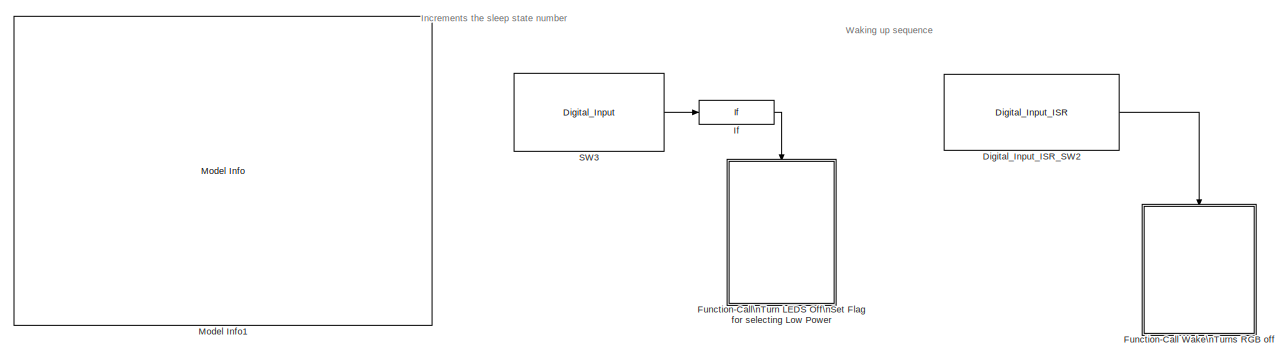
[diagram: root canvas - part 1/2, full width, top band]
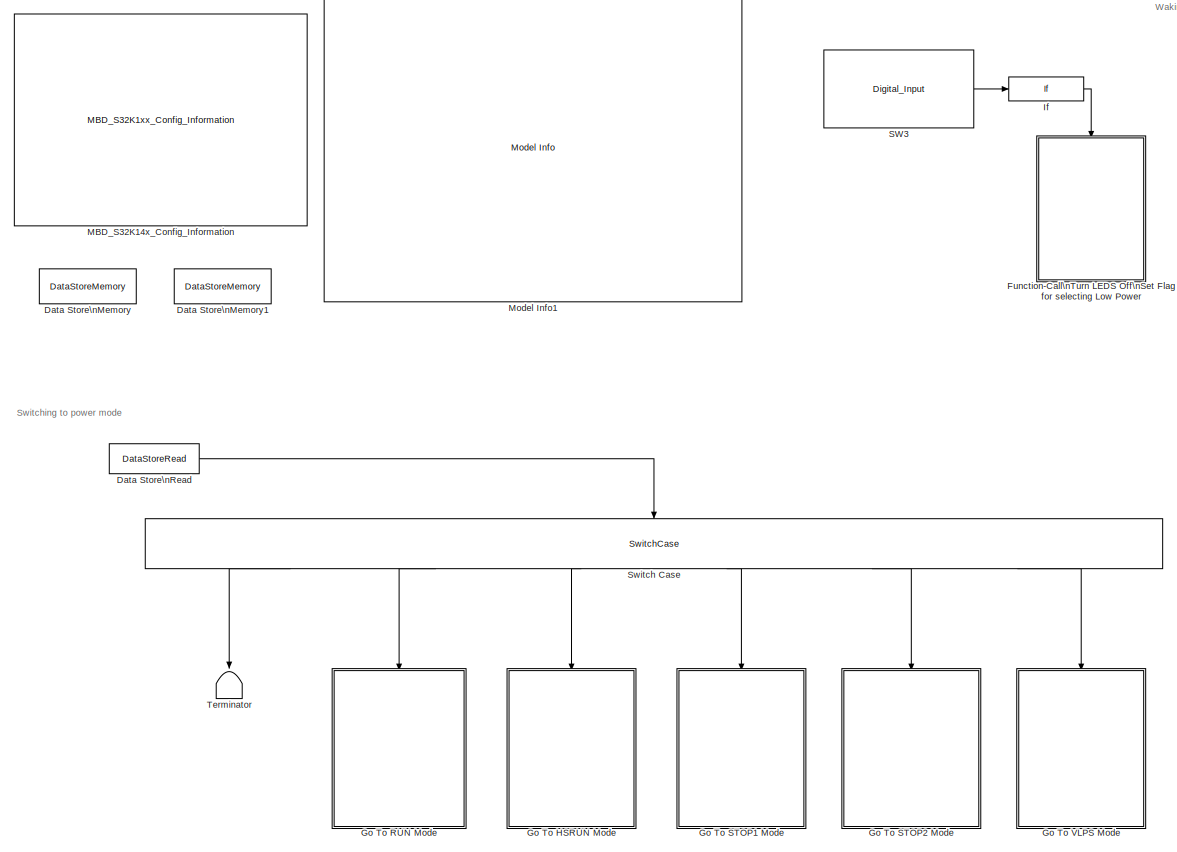
[diagram: root canvas - part 2/2, most of the canvas]
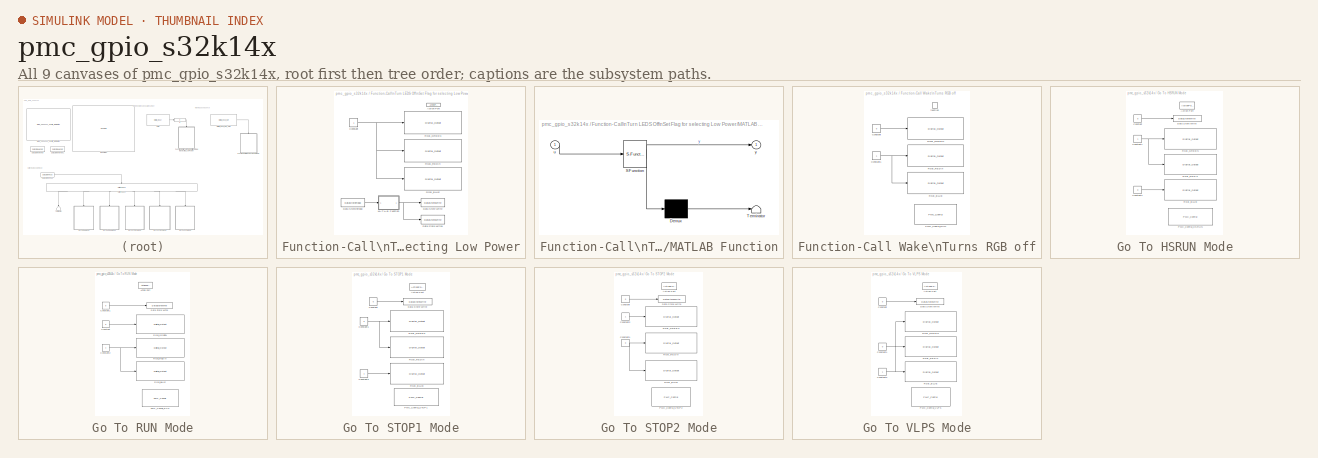
[diagram: thumbnail index - all 9 canvases of the model, root first then tree order]
MODEL pmc_gpio_s32k14x
KIND model
CONFIG InitFcn = mbd_s32k_consistency_checks(bdroot(gcs));
BLOCK [DataStoreMemory] Data Store\nMemory
  DataStoreName = sleep_state
  InitialValue = 1
  OutDataTypeStr = uint8
  ReadBeforeWriteMsg = warning
  SID = 7
  ShowAdditionalParam = off
  WriteAfterReadMsg = warning
  WriteAfterWriteMsg = warning
BLOCK [DataStoreMemory] Data Store\nMemory1
  DataStoreName = sleep_status_fsm
  InitialValue = 1
  OutDataTypeStr = uint8
  ReadBeforeWriteMsg = warning
  SID = 376
  ShowAdditionalParam = off
  WriteAfterReadMsg = warning
  WriteAfterWriteMsg = warning
BLOCK [DataStoreRead] Data Store\nRead
  DataStoreName = sleep_status_fsm
  Ports = [0, 1]
  SID = 399
BLOCK [Reference] Digital_Input_ISR_SW2  REF=mbd_s32k1xx_ec_toolbox/GPIO Blocks/Digital_Input_ISR
  Ports = [0, 1]
  SID = 9
  SourceBlock = mbd_s32k1xx_ec_toolbox/GPIO Blocks/Digital_Input_ISR
  SourceType = gpi_s32k_isr
  gpio_pin = PTC12: [PTC12 | Port C I/O]
  irqc = on rising-edge
  prio = 0
BLOCK [SubSystem] Function-Call Wake\nTurns RGB off
  Ports = [0, 0, 0, 1]
  RequestExecContextInheritance = off
  SID = 19
  TreatAsAtomicUnit = on
  Variant = off
BLOCK [Constant] Function-Call Wake\nTurns RGB off/Constant
  OutDataTypeStr = boolean
  SID = 21
  Value = 0
BLOCK [Constant] Function-Call Wake\nTurns RGB off/Constant1
  OutDataTypeStr = boolean
  SID = 22
BLOCK [Reference] Function-Call Wake\nTurns RGB off/PMC_Config_RUN  REF=mbd_s32k1xx_ec_toolbox/Core and System Blocks/PMC Blocks/PMC_Config
  Ports = []
  SID = 548
  SourceBlock = mbd_s32k1xx_ec_toolbox/Core and System Blocks/PMC Blocks/PMC_Config
  SourceType = pmc_s32k_config
  callback_after = off
  callback_before = off
  callback_before_after = off
  power_mode = Normal Operating (RUN)
  show_adv_opts = off
  sleep_on_exit = off
BLOCK [Reference] Function-Call Wake\nTurns RGB off/RGB_BLUE  REF=mbd_s32k1xx_ec_toolbox/GPIO Blocks/Digital_Output
  Ports = [1]
  SID = 501
  SourceBlock = mbd_s32k1xx_ec_toolbox/GPIO Blocks/Digital_Output
  SourceType = gpio_s32k_output
  drive_strength = Low
  gpio_pin = PTD0: [PTD0 | Port D I/O]
  init_val = Low
BLOCK [Reference] Function-Call Wake\nTurns RGB off/RGB_GREEN  REF=mbd_s32k1xx_ec_toolbox/GPIO Blocks/Digital_Output
  Ports = [1]
  SID = 23
  SourceBlock = mbd_s32k1xx_ec_toolbox/GPIO Blocks/Digital_Output
  SourceType = gpio_s32k_output
  drive_strength = Low
  gpio_pin = PTD16: [PTD16 | Port D I/O]
  init_val = Low
BLOCK [Reference] Function-Call Wake\nTurns RGB off/RGB_RED\n  REF=mbd_s32k1xx_ec_toolbox/GPIO Blocks/Digital_Output
  Ports = [1]
  SID = 24
  SourceBlock = mbd_s32k1xx_ec_toolbox/GPIO Blocks/Digital_Output
  SourceType = gpio_s32k_output
  drive_strength = Low
  gpio_pin = PTD15: [PTD15 | Port D I/O]
  init_val = Low
BLOCK [TriggerPort] Function-Call Wake\nTurns RGB off/function
  Ports = []
  SID = 20
  StatesWhenEnabling = held
  TriggerType = function-call
  VariantControl = Variant
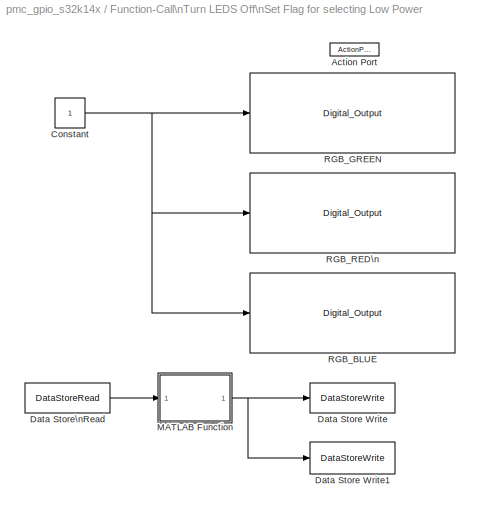
BLOCK [SubSystem] Function-Call\nTurn LEDS Off\nSet Flag for selecting Low Power
  Ports = [0, 0, 0, 0, 0, 0, 0, 1]
  RequestExecContextInheritance = off
  SID = 11
  TreatAsAtomicUnit = on
  Variant = off
BLOCK [ActionPort] Function-Call\nTurn LEDS Off\nSet Flag for selecting Low Power/Action Port
  SID = 545
BLOCK [Constant] Function-Call\nTurn LEDS Off\nSet Flag for selecting Low Power/Constant
  OutDataTypeStr = boolean
  SID = 13
BLOCK [DataStoreWrite] Function-Call\nTurn LEDS Off\nSet Flag for selecting Low Power/Data Store Write
  DataStoreName = sleep_state
  Ports = [1]
  SID = 16
BLOCK [DataStoreWrite] Function-Call\nTurn LEDS Off\nSet Flag for selecting Low Power/Data Store Write1
  DataStoreName = sleep_status_fsm
  Ports = [1]
  SID = 380
BLOCK [DataStoreRead] Function-Call\nTurn LEDS Off\nSet Flag for selecting Low Power/Data Store\nRead
  DataStoreName = sleep_state
  Ports = [0, 1]
  SID = 375
BLOCK [SubSystem] Function-Call\nTurn LEDS Off\nSet Flag for selecting Low Power/MATLAB Function
  ErrorFcn = Stateflow.Translate.translate
  PermitHierarchicalResolution = ExplicitOnly
  Ports = [1, 1]
  RequestExecContextInheritance = off
  SFBlockType = MATLAB Function
  SID = 374
  TreatAsAtomicUnit = on
  Variant = off
BLOCK [Demux] Function-Call\nTurn LEDS Off\nSet Flag for selecting Low Power/MATLAB Function/ Demux 
  Outputs = 1
  Ports = [1, 1]
  SID = 374::32
BLOCK [S-Function] Function-Call\nTurn LEDS Off\nSet Flag for selecting Low Power/MATLAB Function/ SFunction 
  EnableBusSupport = off
  FunctionName = sf_sfun
  PortCounts = [1 2]
  Ports = [1, 2]
  SFcnIsStateOwnerBlock = off
  SFunctionDeploymentMode = off
  SID = 374::31
  Tag = Stateflow S-Function pmc_gpio_s32k14x 2
BLOCK [Terminator] Function-Call\nTurn LEDS Off\nSet Flag for selecting Low Power/MATLAB Function/ Terminator 
  SID = 374::33
BLOCK [Inport] Function-Call\nTurn LEDS Off\nSet Flag for selecting Low Power/MATLAB Function/u
  IconDisplay = Port number
  SID = 374::1
BLOCK [Outport] Function-Call\nTurn LEDS Off\nSet Flag for selecting Low Power/MATLAB Function/y
  IconDisplay = Port number
  SID = 374::5
BLOCK [Reference] Function-Call\nTurn LEDS Off\nSet Flag for selecting Low Power/RGB_BLUE  REF=mbd_s32k1xx_ec_toolbox/GPIO Blocks/Digital_Output
  Ports = [1]
  SID = 499
  SourceBlock = mbd_s32k1xx_ec_toolbox/GPIO Blocks/Digital_Output
  SourceType = gpio_s32k_output
  drive_strength = Low
  gpio_pin = PTD0: [PTD0 | Port D I/O]
  init_val = Low
BLOCK [Reference] Function-Call\nTurn LEDS Off\nSet Flag for selecting Low Power/RGB_GREEN  REF=mbd_s32k1xx_ec_toolbox/GPIO Blocks/Digital_Output
  Ports = [1]
  SID = 17
  SourceBlock = mbd_s32k1xx_ec_toolbox/GPIO Blocks/Digital_Output
  SourceType = gpio_s32k_output
  drive_strength = Low
  gpio_pin = PTD16: [PTD16 | Port D I/O]
  init_val = Low
BLOCK [Reference] Function-Call\nTurn LEDS Off\nSet Flag for selecting Low Power/RGB_RED\n  REF=mbd_s32k1xx_ec_toolbox/GPIO Blocks/Digital_Output
  Ports = [1]
  SID = 18
  SourceBlock = mbd_s32k1xx_ec_toolbox/GPIO Blocks/Digital_Output
  SourceType = gpio_s32k_output
  drive_strength = Low
  gpio_pin = PTD15: [PTD15 | Port D I/O]
  init_val = Low
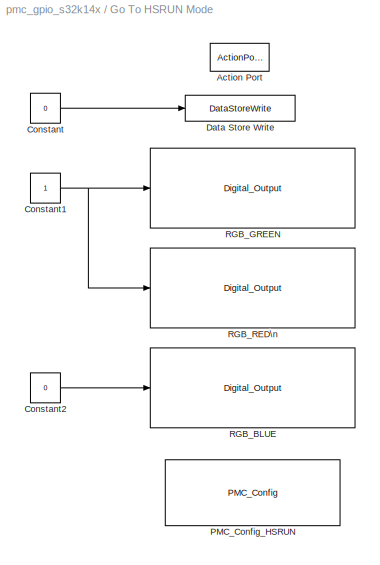
BLOCK [SubSystem] Go To HSRUN Mode
  Ports = [0, 0, 0, 0, 0, 0, 0, 1]
  RequestExecContextInheritance = off
  SID = 400
  TreatAsAtomicUnit = on
  Variant = off
BLOCK [ActionPort] Go To HSRUN Mode/Action Port
  SID = 457
BLOCK [Constant] Go To HSRUN Mode/Constant
  OutDataTypeStr = uint8
  SID = 441
  Value = 0
BLOCK [Constant] Go To HSRUN Mode/Constant1
  OutDataTypeStr = boolean
  SID = 508
BLOCK [Constant] Go To HSRUN Mode/Constant2
  OutDataTypeStr = boolean
  SID = 509
  Value = 0
BLOCK [DataStoreWrite] Go To HSRUN Mode/Data Store Write
  DataStoreName = sleep_status_fsm
  Ports = [1]
  SID = 442
BLOCK [Reference] Go To HSRUN Mode/PMC_Config_HSRUN  REF=mbd_s32k1xx_ec_toolbox/Core and System Blocks/PMC Blocks/PMC_Config
  Ports = []
  SID = 496
  SourceBlock = mbd_s32k1xx_ec_toolbox/Core and System Blocks/PMC Blocks/PMC_Config
  SourceType = pmc_s32k_config
  callback_after = off
  callback_before = off
  callback_before_after = off
  power_mode = High Speed Run (HSRUN)
  show_adv_opts = off
  sleep_on_exit = off
BLOCK [Reference] Go To HSRUN Mode/RGB_BLUE  REF=mbd_s32k1xx_ec_toolbox/GPIO Blocks/Digital_Output
  Ports = [1]
  SID = 510
  SourceBlock = mbd_s32k1xx_ec_toolbox/GPIO Blocks/Digital_Output
  SourceType = gpio_s32k_output
  drive_strength = Low
  gpio_pin = PTD0: [PTD0 | Port D I/O]
  init_val = Low
BLOCK [Reference] Go To HSRUN Mode/RGB_GREEN  REF=mbd_s32k1xx_ec_toolbox/GPIO Blocks/Digital_Output
  Ports = [1]
  SID = 511
  SourceBlock = mbd_s32k1xx_ec_toolbox/GPIO Blocks/Digital_Output
  SourceType = gpio_s32k_output
  drive_strength = Low
  gpio_pin = PTD16: [PTD16 | Port D I/O]
  init_val = Low
BLOCK [Reference] Go To HSRUN Mode/RGB_RED\n  REF=mbd_s32k1xx_ec_toolbox/GPIO Blocks/Digital_Output
  Ports = [1]
  SID = 512
  SourceBlock = mbd_s32k1xx_ec_toolbox/GPIO Blocks/Digital_Output
  SourceType = gpio_s32k_output
  drive_strength = Low
  gpio_pin = PTD15: [PTD15 | Port D I/O]
  init_val = Low
BLOCK [SubSystem] Go To RUN Mode
  Ports = [0, 0, 0, 0, 0, 0, 0, 1]
  RequestExecContextInheritance = off
  SID = 405
  TreatAsAtomicUnit = on
  Variant = off
BLOCK [ActionPort] Go To RUN Mode/Action Port
  SID = 455
BLOCK [Constant] Go To RUN Mode/Constant
  OutDataTypeStr = boolean
  SID = 502
  Value = 0
BLOCK [Constant] Go To RUN Mode/Constant1
  OutDataTypeStr = uint8
  SID = 439
  Value = 0
BLOCK [Constant] Go To RUN Mode/Constant2
  OutDataTypeStr = boolean
  SID = 506
BLOCK [DataStoreWrite] Go To RUN Mode/Data Store Write
  DataStoreName = sleep_status_fsm
  Ports = [1]
  SID = 440
BLOCK [Reference] Go To RUN Mode/PMC_Config_RUN  REF=mbd_s32k1xx_ec_toolbox/Core and System Blocks/PMC Blocks/PMC_Config
  Ports = []
  SID = 488
  SourceBlock = mbd_s32k1xx_ec_toolbox/Core and System Blocks/PMC Blocks/PMC_Config
  SourceType = pmc_s32k_config
  callback_after = off
  callback_before = off
  callback_before_after = off
  power_mode = Normal Operating (RUN)
  show_adv_opts = off
  sleep_on_exit = off
BLOCK [Reference] Go To RUN Mode/RGB_BLUE  REF=mbd_s32k1xx_ec_toolbox/GPIO Blocks/Digital_Output
  Ports = [1]
  SID = 503
  SourceBlock = mbd_s32k1xx_ec_toolbox/GPIO Blocks/Digital_Output
  SourceType = gpio_s32k_output
  drive_strength = Low
  gpio_pin = PTD0: [PTD0 | Port D I/O]
  init_val = Low
BLOCK [Reference] Go To RUN Mode/RGB_GREEN  REF=mbd_s32k1xx_ec_toolbox/GPIO Blocks/Digital_Output
  Ports = [1]
  SID = 504
  SourceBlock = mbd_s32k1xx_ec_toolbox/GPIO Blocks/Digital_Output
  SourceType = gpio_s32k_output
  drive_strength = Low
  gpio_pin = PTD16: [PTD16 | Port D I/O]
  init_val = Low
BLOCK [Reference] Go To RUN Mode/RGB_RED\n  REF=mbd_s32k1xx_ec_toolbox/GPIO Blocks/Digital_Output
  Ports = [1]
  SID = 505
  SourceBlock = mbd_s32k1xx_ec_toolbox/GPIO Blocks/Digital_Output
  SourceType = gpio_s32k_output
  drive_strength = Low
  gpio_pin = PTD15: [PTD15 | Port D I/O]
  init_val = Low
BLOCK [SubSystem] Go To STOP1 Mode
  Ports = [0, 0, 0, 0, 0, 0, 0, 1]
  RequestExecContextInheritance = off
  SID = 410
  TreatAsAtomicUnit = on
  Variant = off
BLOCK [ActionPort] Go To STOP1 Mode/Action Port
  SID = 459
BLOCK [Constant] Go To STOP1 Mode/Constant
  OutDataTypeStr = uint8
  SID = 447
  Value = 0
BLOCK [Constant] Go To STOP1 Mode/Constant1
  OutDataTypeStr = boolean
  SID = 524
  Value = 0
BLOCK [Constant] Go To STOP1 Mode/Constant2
  OutDataTypeStr = boolean
  SID = 525
BLOCK [DataStoreWrite] Go To STOP1 Mode/Data Store Write
  DataStoreName = sleep_status_fsm
  Ports = [1]
  SID = 448
BLOCK [Reference] Go To STOP1 Mode/PMC_Config_STOP1  REF=mbd_s32k1xx_ec_toolbox/Core and System Blocks/PMC Blocks/PMC_Config
  Ports = []
  SID = 497
  SourceBlock = mbd_s32k1xx_ec_toolbox/Core and System Blocks/PMC Blocks/PMC_Config
  SourceType = pmc_s32k_config
  callback_after = off
  callback_before = off
  callback_before_after = off
  power_mode = Stop System and Bus clocks (STOP1)
  show_adv_opts = on
  sleep_on_exit = off
BLOCK [Reference] Go To STOP1 Mode/RGB_BLUE  REF=mbd_s32k1xx_ec_toolbox/GPIO Blocks/Digital_Output
  Ports = [1]
  SID = 526
  SourceBlock = mbd_s32k1xx_ec_toolbox/GPIO Blocks/Digital_Output
  SourceType = gpio_s32k_output
  drive_strength = Low
  gpio_pin = PTD0: [PTD0 | Port D I/O]
  init_val = Low
BLOCK [Reference] Go To STOP1 Mode/RGB_GREEN  REF=mbd_s32k1xx_ec_toolbox/GPIO Blocks/Digital_Output
  Ports = [1]
  SID = 527
  SourceBlock = mbd_s32k1xx_ec_toolbox/GPIO Blocks/Digital_Output
  SourceType = gpio_s32k_output
  drive_strength = Low
  gpio_pin = PTD16: [PTD16 | Port D I/O]
  init_val = Low
BLOCK [Reference] Go To STOP1 Mode/RGB_RED\n  REF=mbd_s32k1xx_ec_toolbox/GPIO Blocks/Digital_Output
  Ports = [1]
  SID = 528
  SourceBlock = mbd_s32k1xx_ec_toolbox/GPIO Blocks/Digital_Output
  SourceType = gpio_s32k_output
  drive_strength = Low
  gpio_pin = PTD15: [PTD15 | Port D I/O]
  init_val = Low
BLOCK [SubSystem] Go To STOP2 Mode
  Ports = [0, 0, 0, 0, 0, 0, 0, 1]
  RequestExecContextInheritance = off
  SID = 415
  TreatAsAtomicUnit = on
  Variant = off
BLOCK [ActionPort] Go To STOP2 Mode/Action Port
  SID = 460
BLOCK [Constant] Go To STOP2 Mode/Constant
  OutDataTypeStr = uint8
  SID = 449
  Value = 0
BLOCK [Constant] Go To STOP2 Mode/Constant1
  OutDataTypeStr = boolean
  SID = 529
  Value = 0
BLOCK [Constant] Go To STOP2 Mode/Constant2
  OutDataTypeStr = boolean
  SID = 530
BLOCK [DataStoreWrite] Go To STOP2 Mode/Data Store Write
  DataStoreName = sleep_status_fsm
  Ports = [1]
  SID = 450
BLOCK [Reference] Go To STOP2 Mode/PMC_Config_STOP2  REF=mbd_s32k1xx_ec_toolbox/Core and System Blocks/PMC Blocks/PMC_Config
  Ports = []
  SID = 493
  SourceBlock = mbd_s32k1xx_ec_toolbox/Core and System Blocks/PMC Blocks/PMC_Config
  SourceType = pmc_s32k_config
  callback_after = off
  callback_before = off
  callback_before_after = off
  power_mode = Stop System clock and keep Bus clock running (STOP2)
  show_adv_opts = off
  sleep_on_exit = off
BLOCK [Reference] Go To STOP2 Mode/RGB_BLUE  REF=mbd_s32k1xx_ec_toolbox/GPIO Blocks/Digital_Output
  Ports = [1]
  SID = 531
  SourceBlock = mbd_s32k1xx_ec_toolbox/GPIO Blocks/Digital_Output
  SourceType = gpio_s32k_output
  drive_strength = Low
  gpio_pin = PTD0: [PTD0 | Port D I/O]
  init_val = Low
BLOCK [Reference] Go To STOP2 Mode/RGB_GREEN  REF=mbd_s32k1xx_ec_toolbox/GPIO Blocks/Digital_Output
  Ports = [1]
  SID = 532
  SourceBlock = mbd_s32k1xx_ec_toolbox/GPIO Blocks/Digital_Output
  SourceType = gpio_s32k_output
  drive_strength = Low
  gpio_pin = PTD16: [PTD16 | Port D I/O]
  init_val = Low
BLOCK [Reference] Go To STOP2 Mode/RGB_RED\n  REF=mbd_s32k1xx_ec_toolbox/GPIO Blocks/Digital_Output
  Ports = [1]
  SID = 533
  SourceBlock = mbd_s32k1xx_ec_toolbox/GPIO Blocks/Digital_Output
  SourceType = gpio_s32k_output
  drive_strength = Low
  gpio_pin = PTD15: [PTD15 | Port D I/O]
  init_val = Low
BLOCK [SubSystem] Go To VLPS Mode
  Ports = [0, 0, 0, 0, 0, 0, 0, 1]
  RequestExecContextInheritance = off
  SID = 431
  TreatAsAtomicUnit = on
  Variant = off
BLOCK [ActionPort] Go To VLPS Mode/Action Port
  SID = 461
BLOCK [Constant] Go To VLPS Mode/Constant
  OutDataTypeStr = uint8
  SID = 451
  Value = 0
BLOCK [Constant] Go To VLPS Mode/Constant1
  OutDataTypeStr = boolean
  SID = 513
  Value = 0
BLOCK [Constant] Go To VLPS Mode/Constant2
  OutDataTypeStr = boolean
  SID = 514
BLOCK [DataStoreWrite] Go To VLPS Mode/Data Store Write
  DataStoreName = sleep_status_fsm
  Ports = [1]
  SID = 452
BLOCK [Reference] Go To VLPS Mode/PMC_Config_VLPS  REF=mbd_s32k1xx_ec_toolbox/Core and System Blocks/PMC Blocks/PMC_Config
  Ports = []
  SID = 494
  SourceBlock = mbd_s32k1xx_ec_toolbox/Core and System Blocks/PMC Blocks/PMC_Config
  SourceType = pmc_s32k_config
  callback_after = off
  callback_before = off
  callback_before_after = off
  power_mode = Very Low Power Stop (VLPS)
  show_adv_opts = off
  sleep_on_exit = off
BLOCK [Reference] Go To VLPS Mode/RGB_BLUE  REF=mbd_s32k1xx_ec_toolbox/GPIO Blocks/Digital_Output
  Ports = [1]
  SID = 515
  SourceBlock = mbd_s32k1xx_ec_toolbox/GPIO Blocks/Digital_Output
  SourceType = gpio_s32k_output
  drive_strength = Low
  gpio_pin = PTD0: [PTD0 | Port D I/O]
  init_val = Low
BLOCK [Reference] Go To VLPS Mode/RGB_GREEN  REF=mbd_s32k1xx_ec_toolbox/GPIO Blocks/Digital_Output
  Ports = [1]
  SID = 516
  SourceBlock = mbd_s32k1xx_ec_toolbox/GPIO Blocks/Digital_Output
  SourceType = gpio_s32k_output
  drive_strength = Low
  gpio_pin = PTD16: [PTD16 | Port D I/O]
  init_val = Low
BLOCK [Reference] Go To VLPS Mode/RGB_RED\n  REF=mbd_s32k1xx_ec_toolbox/GPIO Blocks/Digital_Output
  Ports = [1]
  SID = 517
  SourceBlock = mbd_s32k1xx_ec_toolbox/GPIO Blocks/Digital_Output
  SourceType = gpio_s32k_output
  drive_strength = Low
  gpio_pin = PTD15: [PTD15 | Port D I/O]
  init_val = Low
BLOCK [If] If
  IfExpression = u1 == 1
  Ports = [1, 1]
  SID = 544
  ShowElse = off
BLOCK [Reference] MBD_S32K14x_Config_Information  REF=mbd_s32k1xx_ec_toolbox/MBD_S32K1xx_Config_Information
  ADC_PcrCheckEnDis = on
  AMMCLIB_PcrCheckEnDis = on
  CMP_PcrCheckEnDis = on
  CSEc_PcrCheckEnDis = on
  ConfigParams_PcrCheckEnDis = on
  FM_PcrCheckEnDis = on
  FTM_Dual_Edge_Inputs_PcrCheckEnDis = on
  FTM_Hall_Sensor_Inputs_PcrCheckEnDis = on
  FTM_Input_Edge_Inputs_PcrCheckEnDis = on
  FTM_PWM_PcrCheckEnDis = on
  FTM_Quadrature_Inputs_PcrCheckEnDis = on
  FlexCAN_PcrCheckEnDis = on
  FlexIO_PcrCheckEnDis = on
  GPIO_InputPcrCheckEnDis = on
  GPIO_OutputPcrCheckEnDis = on
  LIN_PcrCheckEnDis = on
  LPI2C_PcrCheckEnDis = on
  LPSPI_PcrCheckEnDis = on
  LPTMR_PcrCheckEnDis = on
  LPUART_PcrCheckEnDis = on
  ModelRef_PcrCheckEnDis = on
  PDB0_PcrCheckEnDis = on
  PIT_PcrCheckEnDis = on
  Ports = []
  Profile_PcrCheckEnDis = on
  RTC_PcrCheckEnDis = on
  SBC_PcrCheckEnDis = on
  SID = 547
  SourceBlock = mbd_s32k1xx_ec_toolbox/MBD_S32K1xx_Config_Information
  SourceType = MBDTBX_EC_S32K
  WDOG_PcrCheckEnDis = on
  config_params = []
  disp_str = Target : S32K144-64KB_SRAM\nPackage : 100-pin\nSystem clock : 80 MHz\nXTAL clock : External 8 MHz\nCompiler : IAR\nTarget Type : FLASH\nDownload Code after build : off\nStep Tick Interrupt Priority : 15
  ds_import_enable = on
  eDMA_PcrCheckEnDis = on
  gcc_target_assemble_opts = -mcpu=cortex-m4 -mthumb -mfloat-abi=hard -mfpu=fpv4-sp-d16 -g
  gcc_target_compile_opts = -mcpu=cortex-m4 -mthumb -mfloat-abi=hard -mfpu=fpv4-sp-d16 -O1 -g -gstrict-dwarf
  gcc_target_default_lcf = on
  gcc_target_link_opts = -mcpu=cortex-m4 -mthumb -mfloat-abi=hard -mfpu=fpv4-sp-d16
  gcc_target_user_lcf = S32K144_64_flash.ld
  ghs_target_assemble_opts = -cpu=cortexm4f -fpu=vfpv4_d16
  ghs_target_compile_opts = -cpu=cortexm4f -thumb -DARM_MATH_CM4 -fpu=vfpv4_d16 -fsingle -Ogeneral -Wundef -Wimplicit-int -Wshadow -Wtrigraphs --no_commons --gnu_asm -gnu99 -gdwarf-2 -G
  ghs_target_default_lcf = on
  ghs_target_link_opts = -cpu=cortexm4f -thumb -fpu=vfpv4_d16
  ghs_target_user_lcf = S32K144_64_flash.ld
  iar_target_assemble_opts = --cpu Cortex-M4F --thumb --fpu VFPv4_sp
  iar_target_compile_opts = --cpu=Cortex-M4F --thumb --fpu=VFPv4_sp -Ol -e --debug --dlib_config normal
  iar_target_default_lcf = on
  iar_target_link_opts = --no_exceptions --vfe --inline
  iar_target_user_lcf = S32K144_64_flash.icf
  mbdt_ver = 0
  mcu_steptick_prio = 15
  mcu_steptick_timer = LPIT Channel 0
  mcu_system_clock_freq = 80
  mcu_target_name = S32K144
  mcu_target_package = 100-LQFP
  mcu_target_sram_size = 64KB
  mcu_xtal_freq = External 8
  pil_download_enable = off
  pil_download_rate = 57600
  pil_opensda_drive = Custom
  pil_opensda_drive_custom = D
  pil_uart_instance = 0
  pil_uart_rx = PTA2: [LPUART0_RX | Receive]
  pil_uart_tx = PTA3: [LPUART0_TX | Transmit]
  rbl_com_port = Custom
  rbl_com_port_custom = COM1
  rbl_download_enable = on
  rbl_download_interface = OpenSDA
  rbl_restart_request = off
  rbl_start_delay = 5000000
  target_compiler = GCC
  target_memory = FLASH
BLOCK [Reference] Model Info1  REF=simulink/Model-Wide\nUtilities/Model Info
  DisplayStringWithTags = Model Name: %<ModelName>\n\nDescription: %<Description>
  Frame = off
  HorizontalTextAlignment = Left
  LeftAlignmentValue = 0.02
  MaskDisplayString = Model Name: pmc_gpio_s32k14x\\n\\nDescription: This model demonstrates the \"Power Management\" functionality by setting \\nthe S32k144 controller in all power modes one at a time. \\n\\nValidation: When the processor boots up, it enters the RUN power mode.  The SW3 switch\\nincrements the sleep_state variable. It switches the power mode state according to the\\nsleep_state value. For every power ...<+437ch>
  Ports = []
  SID = 539
  SourceBlock = simulink/Model-Wide\nUtilities/Model Info
  SourceProductBaseCode = SL
  SourceProductName = Simulink
  SourceType = CMBlock
BLOCK [Reference] SW3  REF=mbd_s32k1xx_ec_toolbox/GPIO Blocks/Digital_Input
  Ports = [0, 1]
  SID = 40
  SourceBlock = mbd_s32k1xx_ec_toolbox/GPIO Blocks/Digital_Input
  SourceType = gpio_s32k_input
  gpio_pin = PTC13: [PTC13 | Port C I/O]
  passive_filter = on
  pull_resistor = None
BLOCK [SwitchCase] Switch Case
  CaseConditions = {0,1,2,3,4,5}
  Ports = [1, 6]
  SID = 398
  ShowDefaultCase = off
BLOCK [Terminator] Terminator
  SID = 436
ANNOTATION (root): Increments the sleep state number
ANNOTATION (root): Switching to power mode
ANNOTATION (root): Waking up sequence
LINE Data Store\nRead:1 -> Switch Case:1
LINE Digital_Input_ISR_SW2:1 -> Function-Call Wake\nTurns RGB off:trigger
NET Function-Call Wake\nTurns RGB off/Constant1:1 -> Function-Call Wake\nTurns RGB off/RGB_BLUE:1, Function-Call Wake\nTurns RGB off/RGB_RED\n:1
LINE Function-Call Wake\nTurns RGB off/Constant:1 -> Function-Call Wake\nTurns RGB off/RGB_GREEN:1
NET Function-Call\nTurn LEDS Off\nSet Flag for selecting Low Power/Constant:1 -> Function-Call\nTurn LEDS Off\nSet Flag for selecting Low Power/RGB_BLUE:1, Function-Call\nTurn LEDS Off\nSet Flag for selecting Low Power/RGB_GREEN:1, Function-Call\nTurn LEDS Off\nSet Flag for selecting Low Power/RGB_RED\n:1
LINE Function-Call\nTurn LEDS Off\nSet Flag for selecting Low Power/Data Store\nRead:1 -> Function-Call\nTurn LEDS Off\nSet Flag for selecting Low Power/MATLAB Function:1
LINE Function-Call\nTurn LEDS Off\nSet Flag for selecting Low Power/MATLAB Function/ Demux :1 -> Function-Call\nTurn LEDS Off\nSet Flag for selecting Low Power/MATLAB Function/ Terminator :1
LINE Function-Call\nTurn LEDS Off\nSet Flag for selecting Low Power/MATLAB Function/ SFunction :1 -> Function-Call\nTurn LEDS Off\nSet Flag for selecting Low Power/MATLAB Function/ Demux :1
LINE Function-Call\nTurn LEDS Off\nSet Flag for selecting Low Power/MATLAB Function/ SFunction :2 -> Function-Call\nTurn LEDS Off\nSet Flag for selecting Low Power/MATLAB Function/y:1
LINE Function-Call\nTurn LEDS Off\nSet Flag for selecting Low Power/MATLAB Function/u:1 -> Function-Call\nTurn LEDS Off\nSet Flag for selecting Low Power/MATLAB Function/ SFunction :1
NET Function-Call\nTurn LEDS Off\nSet Flag for selecting Low Power/MATLAB Function:1 -> Function-Call\nTurn LEDS Off\nSet Flag for selecting Low Power/Data Store Write1:1, Function-Call\nTurn LEDS Off\nSet Flag for selecting Low Power/Data Store Write:1
NET Go To HSRUN Mode/Constant1:1 -> Go To HSRUN Mode/RGB_GREEN:1, Go To HSRUN Mode/RGB_RED\n:1
LINE Go To HSRUN Mode/Constant2:1 -> Go To HSRUN Mode/RGB_BLUE:1
LINE Go To HSRUN Mode/Constant:1 -> Go To HSRUN Mode/Data Store Write:1
LINE Go To RUN Mode/Constant1:1 -> Go To RUN Mode/Data Store Write:1
NET Go To RUN Mode/Constant2:1 -> Go To RUN Mode/RGB_BLUE:1, Go To RUN Mode/RGB_RED\n:1
LINE Go To RUN Mode/Constant:1 -> Go To RUN Mode/RGB_GREEN:1
NET Go To STOP1 Mode/Constant1:1 -> Go To STOP1 Mode/RGB_GREEN:1, Go To STOP1 Mode/RGB_RED\n:1
LINE Go To STOP1 Mode/Constant2:1 -> Go To STOP1 Mode/RGB_BLUE:1
LINE Go To STOP1 Mode/Constant:1 -> Go To STOP1 Mode/Data Store Write:1
NET Go To STOP2 Mode/Constant1:1 -> Go To STOP2 Mode/RGB_BLUE:1, Go To STOP2 Mode/RGB_RED\n:1
LINE Go To STOP2 Mode/Constant2:1 -> Go To STOP2 Mode/RGB_GREEN:1
LINE Go To STOP2 Mode/Constant:1 -> Go To STOP2 Mode/Data Store Write:1
LINE Go To VLPS Mode/Constant1:1 -> Go To VLPS Mode/RGB_RED\n:1
NET Go To VLPS Mode/Constant2:1 -> Go To VLPS Mode/RGB_BLUE:1, Go To VLPS Mode/RGB_GREEN:1
LINE Go To VLPS Mode/Constant:1 -> Go To VLPS Mode/Data Store Write:1
LINE If:1 -> Function-Call\nTurn LEDS Off\nSet Flag for selecting Low Power:ifaction
LINE SW3:1 -> If:1
LINE Switch Case:1 -> Terminator:1
LINE Switch Case:2 -> Go To RUN Mode:ifaction
LINE Switch Case:3 -> Go To HSRUN Mode:ifaction
LINE Switch Case:4 -> Go To STOP1 Mode:ifaction
LINE Switch Case:5 -> Go To STOP2 Mode:ifaction
LINE Switch Case:6 -> Go To VLPS Mode:ifaction
note: NET lines group one-source signal fan-out (src -> all destinations, sorted); 1:1 wires keep LINE
CHART Function-Call\nTurn LEDS Off\nSet Flag for selecting Low Power/MATLAB Function states=1 transitions=1
  STATE_LABEL 'eML_blk_kernel()'
